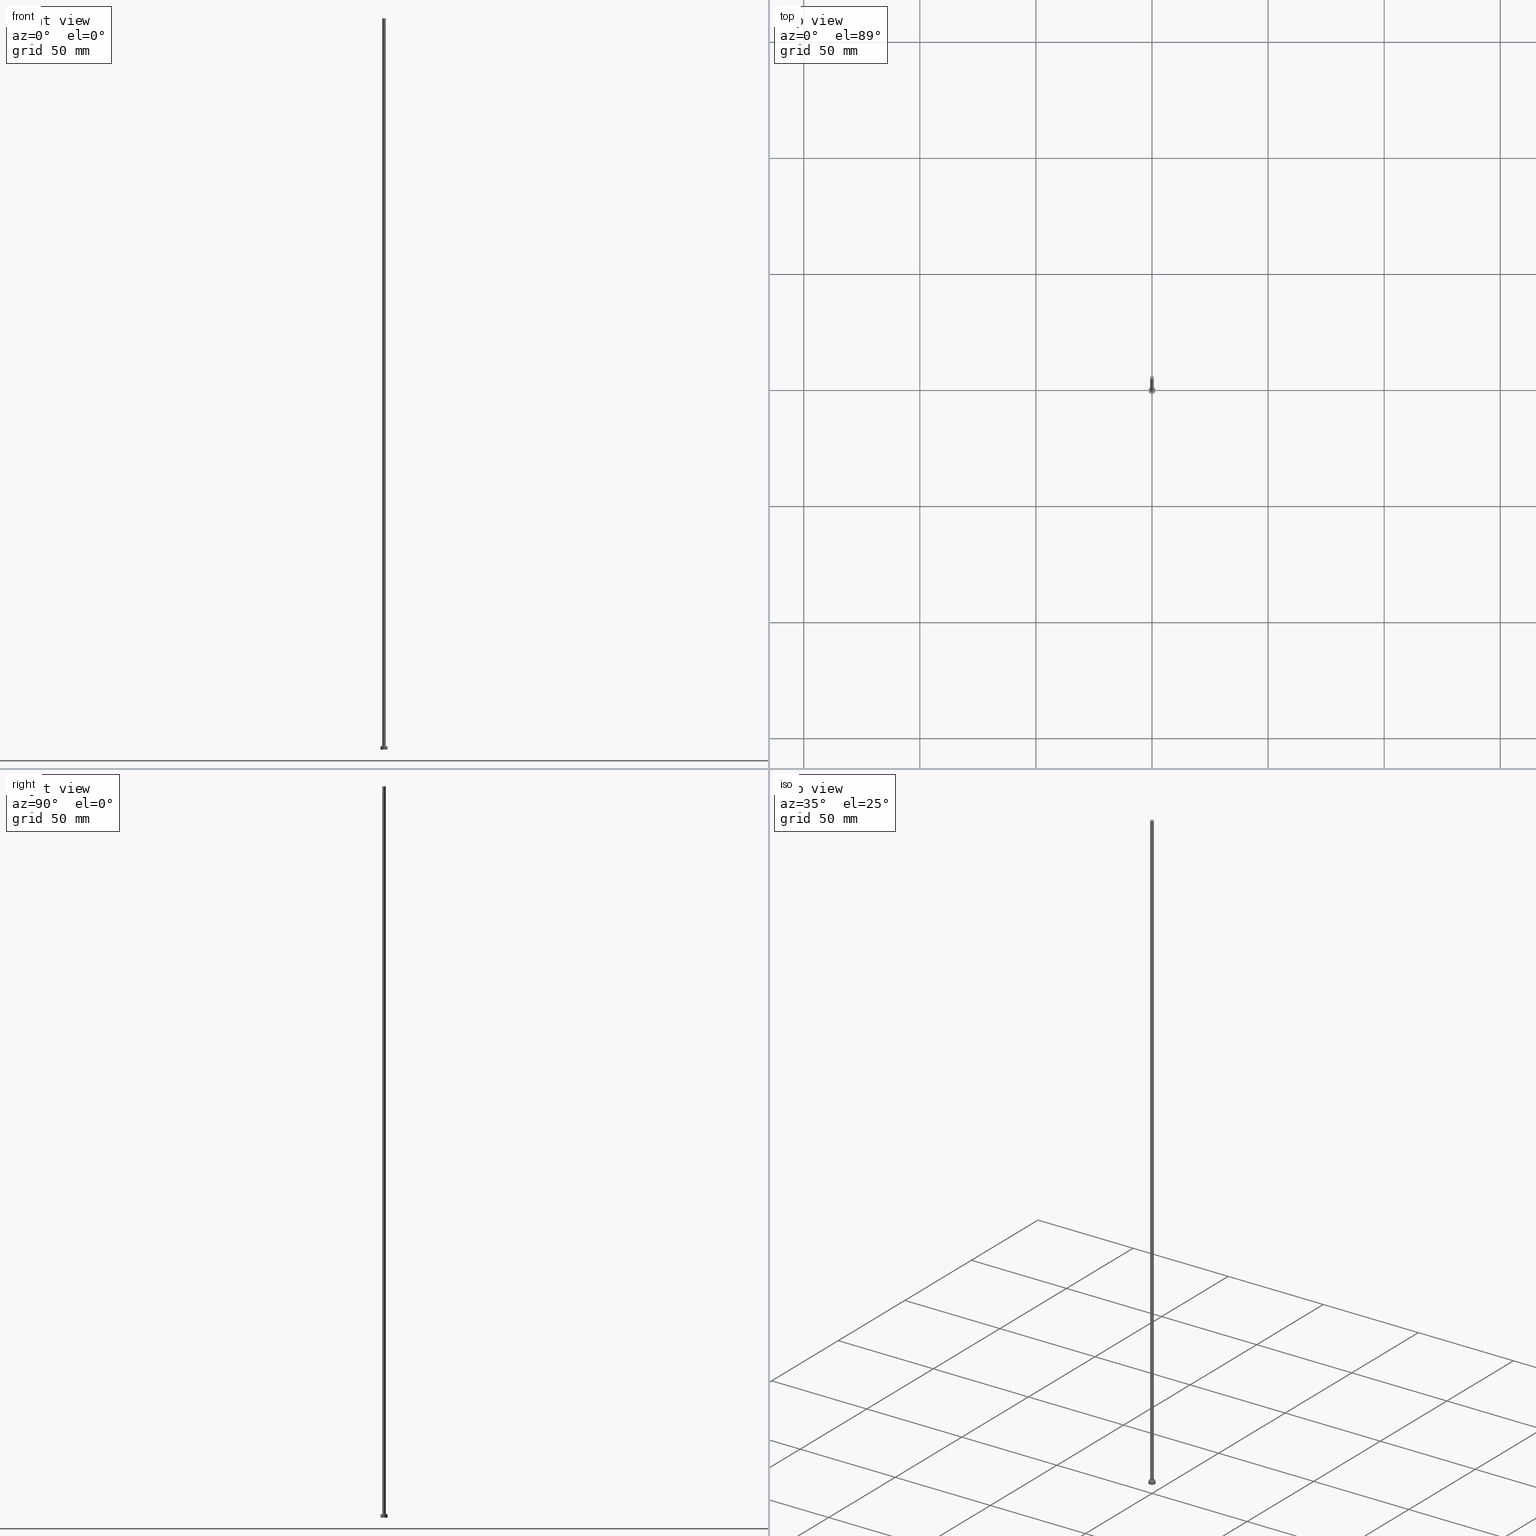
[diagram: canonical four-view strip — front | top / right | iso, engineering-drawing reading convention]
A machine part, canonical four-view strip (front | top / right | iso — engineering-drawing reading convention). The complete STEP part file that produces these views, byte-faithful:
ISO-10303-21;
HEADER;
FILE_DESCRIPTION (( 'STEP AP203' ),
    '1' );
FILE_NAME ('c9fe.STEP',
    '2026-02-06T12:32:58',
    ( '' ),
    ( '' ),
    'SwSTEP 2.0',
    'SolidWorks 2019',
    '' );
FILE_SCHEMA (( 'CONFIG_CONTROL_DESIGN' ));
ENDSEC;

DATA;
#1 = PERSON_AND_ORGANIZATION_ROLE ( 'design_owner' ) ;
#2 = DIRECTION ( 'NONE',  ( 1.000000000000000000, 0.000000000000000000, -0.000000000000000000 ) ) ;
#3 = APPROVAL_PERSON_ORGANIZATION ( #165, #72, #146 ) ;
#4 = CALENDAR_DATE ( 2026, 6, 2 ) ;
#5 =( LENGTH_UNIT ( ) NAMED_UNIT ( * ) SI_UNIT ( .MILLI., .METRE. ) );
#6 = CARTESIAN_POINT ( 'NONE',  ( 0.000000000000000000, 0.000000000000000000, 0.000000000000000000 ) ) ;
#7 = DIRECTION ( 'NONE',  ( -0.000000000000000000, -0.000000000000000000, -1.000000000000000000 ) ) ;
#8 = AXIS2_PLACEMENT_3D ( 'NONE', #239, #103, #201 ) ;
#9 = CARTESIAN_POINT ( 'NONE',  ( 0.000000000000000000, 0.000000000000000000, 315.0000000000000000 ) ) ;
#10 = EDGE_LOOP ( 'NONE', ( #64, #122 ) ) ;
#11 = PERSON_AND_ORGANIZATION ( #44, #90 ) ;
#12 = FACE_OUTER_BOUND ( 'NONE', #29, .T. ) ;
#13 = ORIENTED_EDGE ( 'NONE', *, *, #65, .F. ) ;
#14 = CC_DESIGN_SECURITY_CLASSIFICATION ( #229, ( #60 ) ) ;
#15 = EDGE_LOOP ( 'NONE', ( #128, #139, #191, #87 ) ) ;
#16 = VERTEX_POINT ( 'NONE', #171 ) ;
#17 = ADVANCED_FACE ( 'NONE', ( #248 ), #156, .T. ) ;
#18 = CARTESIAN_POINT ( 'NONE',  ( -1.500000000000000222, 0.000000000000000000, 1.500000000000000000 ) ) ;
#19 = DIRECTION ( 'NONE',  ( 1.000000000000000000, 0.000000000000000000, 0.000000000000000000 ) ) ;
#20 = EDGE_CURVE ( 'NONE', #48, #79, #176, .T. ) ;
#21 = AXIS2_PLACEMENT_3D ( 'NONE', #232, #228, #93 ) ;
#22 = ORIENTED_EDGE ( 'NONE', *, *, #209, .F. ) ;
#23 = DATE_TIME_ROLE ( 'creation_date' ) ;
#24 = FACE_OUTER_BOUND ( 'NONE', #10, .T. ) ;
#25 = CC_DESIGN_PERSON_AND_ORGANIZATION_ASSIGNMENT ( #206, #203, ( #229 ) ) ;
#26 = CARTESIAN_POINT ( 'NONE',  ( 1.500000000000000222, 1.836970198721030181E-16, 1.500000000000000000 ) ) ;
#27 = CIRCLE ( 'NONE', #35, 0.7500000000000001110 ) ;
#28 = PRODUCT ( 'c9fe', 'c9fe', '', ( #76 ) ) ;
#29 = EDGE_LOOP ( 'NONE', ( #195, #69, #222, #151 ) ) ;
#30 = ADVANCED_FACE ( 'NONE', ( #12 ), #120, .T. ) ;
#31 = DESIGN_CONTEXT ( 'detailed design', #178, 'design' ) ;
#32 = AXIS2_PLACEMENT_3D ( 'NONE', #216, #230, #47 ) ;
#33 = UNCERTAINTY_MEASURE_WITH_UNIT (LENGTH_MEASURE( 1.000000000000000082E-05 ), #5, 'distance_accuracy_value', 'NONE');
#34 = FACE_OUTER_BOUND ( 'NONE', #110, .T. ) ;
#35 = AXIS2_PLACEMENT_3D ( 'NONE', #211, #220, #19 ) ;
#36 = CARTESIAN_POINT ( 'NONE',  ( 0.000000000000000000, 0.000000000000000000, 1.500000000000000000 ) ) ;
#37 = VERTEX_POINT ( 'NONE', #113 ) ;
#38 = EDGE_CURVE ( 'NONE', #210, #16, #224, .T. ) ;
#39 = FACE_OUTER_BOUND ( 'NONE', #94, .T. ) ;
#40 = CALENDAR_DATE ( 2026, 6, 2 ) ;
#41 = DIRECTION ( 'NONE',  ( 1.000000000000000000, 0.000000000000000000, -0.000000000000000000 ) ) ;
#42 = CC_DESIGN_DATE_AND_TIME_ASSIGNMENT ( #104, #23, ( #215 ) ) ;
#43 = DIRECTION ( 'NONE',  ( 1.000000000000000000, 0.000000000000000000, -0.000000000000000000 ) ) ;
#44 = PERSON ( 'NEUR�EN�', 'NEUR�EN�', 'NEUR�EN�', ('NEUR�EN�'), ('NEUR�EN�'), ('NEUR�EN�') ) ;
#45 = ORIENTED_EDGE ( 'NONE', *, *, #227, .T. ) ;
#46 = APPROVAL_ROLE ( '' ) ;
#47 = DIRECTION ( 'NONE',  ( 1.000000000000000000, 0.000000000000000000, 0.000000000000000000 ) ) ;
#48 = VERTEX_POINT ( 'NONE', #138 ) ;
#49 = SHAPE_DEFINITION_REPRESENTATION ( #111, #160 ) ;
#50 = DIRECTION ( 'NONE',  ( -0.000000000000000000, -0.000000000000000000, -1.000000000000000000 ) ) ;
#51 = AXIS2_PLACEMENT_3D ( 'NONE', #149, #207, #245 ) ;
#52 = AXIS2_PLACEMENT_3D ( 'NONE', #189, #107, #170 ) ;
#53 = CARTESIAN_POINT ( 'NONE',  ( 0.000000000000000000, 0.000000000000000000, 0.000000000000000000 ) ) ;
#54 = CARTESIAN_POINT ( 'NONE',  ( -0.7500000000000001110, 0.000000000000000000, 315.0000000000000000 ) ) ;
#55 = EDGE_CURVE ( 'NONE', #37, #79, #27, .T. ) ;
#56 =( GEOMETRIC_REPRESENTATION_CONTEXT ( 3 ) GLOBAL_UNCERTAINTY_ASSIGNED_CONTEXT ( ( #33 ) ) GLOBAL_UNIT_ASSIGNED_CONTEXT ( ( #5, #82, #100 ) ) REPRESENTATION_CONTEXT ( 'NONE', 'WORKASPACE' ) );
#57 = PERSON_AND_ORGANIZATION_ROLE ( 'design_supplier' ) ;
#58 = PERSON_AND_ORGANIZATION ( #44, #90 ) ;
#59 = DIRECTION ( 'NONE',  ( -1.000000000000000000, 0.000000000000000000, 0.000000000000000000 ) ) ;
#60 = PRODUCT_DEFINITION_FORMATION_WITH_SPECIFIED_SOURCE ( 'LIBOVOLN�', '', #28, .NOT_KNOWN. ) ;
#61 = DATE_AND_TIME ( #4, #158 ) ;
#62 = DIRECTION ( 'NONE',  ( -0.000000000000000000, -0.000000000000000000, -1.000000000000000000 ) ) ;
#63 = PLANE ( 'NONE',  #97 ) ;
#64 = ORIENTED_EDGE ( 'NONE', *, *, #251, .F. ) ;
#65 = EDGE_CURVE ( 'NONE', #48, #137, #169, .T. ) ;
#66 = AXIS2_PLACEMENT_3D ( 'NONE', #141, #89, #154 ) ;
#67 = APPROVAL_DATE_TIME ( #133, #72 ) ;
#68 = CARTESIAN_POINT ( 'NONE',  ( 0.7500000000000001110, 9.184850993605150903E-17, 315.0000000000000000 ) ) ;
#69 = ORIENTED_EDGE ( 'NONE', *, *, #109, .T. ) ;
#70 = CALENDAR_DATE ( 2026, 6, 2 ) ;
#71 = ORIENTED_EDGE ( 'NONE', *, *, #88, .F. ) ;
#72 = APPROVAL ( #240, 'NEUR�EN�' ) ;
#73 = PERSON_AND_ORGANIZATION ( #44, #90 ) ;
#74 = LOCAL_TIME ( 13, 32, 58.00000000000000000, #204 ) ;
#75 = PLANE ( 'NONE',  #184 ) ;
#76 = MECHANICAL_CONTEXT ( 'NONE', #121, 'mechanical' ) ;
#77 = DIRECTION ( 'NONE',  ( 0.000000000000000000, 0.000000000000000000, 1.000000000000000000 ) ) ;
#78 = AXIS2_PLACEMENT_3D ( 'NONE', #6, #130, #126 ) ;
#79 = VERTEX_POINT ( 'NONE', #183 ) ;
#80 = CALENDAR_DATE ( 2026, 6, 2 ) ;
#81 = APPROVAL_DATE_TIME ( #61, #124 ) ;
#82 =( NAMED_UNIT ( * ) PLANE_ANGLE_UNIT ( ) SI_UNIT ( $, .RADIAN. ) );
#83 = APPROVAL_STATUS ( 'not_yet_approved' ) ;
#84 = PLANE ( 'NONE',  #179 ) ;
#85 = VECTOR ( 'NONE', #200, 1000.000000000000000 ) ;
#86 = DIRECTION ( 'NONE',  ( -1.000000000000000000, 0.000000000000000000, 0.000000000000000000 ) ) ;
#87 = ORIENTED_EDGE ( 'NONE', *, *, #251, .T. ) ;
#88 = EDGE_CURVE ( 'NONE', #79, #37, #101, .T. ) ;
#89 = DIRECTION ( 'NONE',  ( -0.000000000000000000, -0.000000000000000000, -1.000000000000000000 ) ) ;
#90 = ORGANIZATION ( 'NEUR�EN�', 'NEUR�EN�', '' ) ;
#91 = VERTEX_POINT ( 'NONE', #235 ) ;
#92 = CC_DESIGN_PERSON_AND_ORGANIZATION_ASSIGNMENT ( #58, #187, ( #215 ) ) ;
#93 = DIRECTION ( 'NONE',  ( -1.000000000000000000, 0.000000000000000000, 0.000000000000000000 ) ) ;
#94 = EDGE_LOOP ( 'NONE', ( #13, #246, #196, #132 ) ) ;
#95 = CC_DESIGN_APPROVAL ( #124, ( #215 ) ) ;
#96 = CC_DESIGN_PERSON_AND_ORGANIZATION_ASSIGNMENT ( #181, #1, ( #28 ) ) ;
#97 = AXIS2_PLACEMENT_3D ( 'NONE', #9, #106, #43 ) ;
#98 = DIRECTION ( 'NONE',  ( -0.000000000000000000, -0.000000000000000000, -1.000000000000000000 ) ) ;
#99 = LINE ( 'NONE', #218, #85 ) ;
#100 =( NAMED_UNIT ( * ) SI_UNIT ( $, .STERADIAN. ) SOLID_ANGLE_UNIT ( ) );
#101 = CIRCLE ( 'NONE', #213, 0.7500000000000001110 ) ;
#102 = APPLICATION_PROTOCOL_DEFINITION ( 'international standard', 'config_control_design', 1994, #121 ) ;
#103 = DIRECTION ( 'NONE',  ( 0.000000000000000000, 0.000000000000000000, 1.000000000000000000 ) ) ;
#104 = DATE_AND_TIME ( #80, #74 ) ;
#105 = APPLICATION_PROTOCOL_DEFINITION ( 'international standard', 'config_control_design', 1994, #178 ) ;
#106 = DIRECTION ( 'NONE',  ( 0.000000000000000000, 0.000000000000000000, 1.000000000000000000 ) ) ;
#107 = DIRECTION ( 'NONE',  ( 0.000000000000000000, 0.000000000000000000, 1.000000000000000000 ) ) ;
#108 = CC_DESIGN_APPROVAL ( #119, ( #229 ) ) ;
#109 = EDGE_CURVE ( 'NONE', #210, #91, #99, .T. ) ;
#110 = EDGE_LOOP ( 'NONE', ( #45, #185 ) ) ;
#111 = PRODUCT_DEFINITION_SHAPE ( 'NONE', 'NONE',  #215 ) ;
#112 = CC_DESIGN_DATE_AND_TIME_ASSIGNMENT ( #214, #157, ( #229 ) ) ;
#113 = CARTESIAN_POINT ( 'NONE',  ( -0.7500000000000001110, 0.000000000000000000, 1.500000000000000000 ) ) ;
#114 = COORDINATED_UNIVERSAL_TIME_OFFSET ( 1, 0, .AHEAD. ) ;
#115 = PERSON_AND_ORGANIZATION_ROLE ( 'creator' ) ;
#116 = ORIENTED_EDGE ( 'NONE', *, *, #55, .T. ) ;
#117 = CALENDAR_DATE ( 2026, 6, 2 ) ;
#118 = LOCAL_TIME ( 13, 32, 58.00000000000000000, #177 ) ;
#119 = APPROVAL ( #250, 'NEUR�EN�' ) ;
#120 = CYLINDRICAL_SURFACE ( 'NONE', #66, 1.500000000000000222 ) ;
#121 = APPLICATION_CONTEXT ( 'configuration controlled 3d designs of mechanical parts and assemblies' ) ;
#122 = ORIENTED_EDGE ( 'NONE', *, *, #142, .F. ) ;
#123 = ADVANCED_FACE ( 'NONE', ( #255, #34 ), #75, .T. ) ;
#124 = APPROVAL ( #83, 'NEUR�EN�' ) ;
#125 = DIRECTION ( 'NONE',  ( 1.000000000000000000, 0.000000000000000000, 0.000000000000000000 ) ) ;
#126 = DIRECTION ( 'NONE',  ( 1.000000000000000000, 0.000000000000000000, 0.000000000000000000 ) ) ;
#127 = DIRECTION ( 'NONE',  ( 1.000000000000000000, 0.000000000000000000, 0.000000000000000000 ) ) ;
#128 = ORIENTED_EDGE ( 'NONE', *, *, #109, .F. ) ;
#129 = DIRECTION ( 'NONE',  ( -0.000000000000000000, -0.000000000000000000, -1.000000000000000000 ) ) ;
#130 = DIRECTION ( 'NONE',  ( 0.000000000000000000, 0.000000000000000000, 1.000000000000000000 ) ) ;
#131 = CIRCLE ( 'NONE', #194, 1.500000000000000222 ) ;
#132 = ORIENTED_EDGE ( 'NONE', *, *, #192, .F. ) ;
#133 = DATE_AND_TIME ( #40, #152 ) ;
#134 = FACE_OUTER_BOUND ( 'NONE', #190, .T. ) ;
#135 = DIRECTION ( 'NONE',  ( 0.000000000000000000, 0.000000000000000000, 1.000000000000000000 ) ) ;
#136 = LOCAL_TIME ( 13, 32, 58.00000000000000000, #114 ) ;
#137 = VERTEX_POINT ( 'NONE', #54 ) ;
#138 = CARTESIAN_POINT ( 'NONE',  ( 0.7500000000000001110, 9.184850993605150903E-17, 315.0000000000000000 ) ) ;
#139 = ORIENTED_EDGE ( 'NONE', *, *, #227, .F. ) ;
#140 = CIRCLE ( 'NONE', #8, 1.500000000000000222 ) ;
#141 = CARTESIAN_POINT ( 'NONE',  ( 0.000000000000000000, 0.000000000000000000, 1.500000000000000000 ) ) ;
#142 = EDGE_CURVE ( 'NONE', #91, #174, #131, .T. ) ;
#143 = DIRECTION ( 'NONE',  ( 0.000000000000000000, 0.000000000000000000, 1.000000000000000000 ) ) ;
#144 = DIRECTION ( 'NONE',  ( 0.000000000000000000, 0.000000000000000000, 1.000000000000000000 ) ) ;
#145 = EDGE_CURVE ( 'NONE', #16, #174, #199, .T. ) ;
#146 = APPROVAL_ROLE ( '' ) ;
#147 = PERSON_AND_ORGANIZATION ( #44, #90 ) ;
#148 = AXIS2_PLACEMENT_3D ( 'NONE', #162, #144, #238 ) ;
#149 = CARTESIAN_POINT ( 'NONE',  ( 0.000000000000000000, 0.000000000000000000, 315.0000000000000000 ) ) ;
#150 = CARTESIAN_POINT ( 'NONE',  ( 0.000000000000000000, 0.000000000000000000, 1.500000000000000000 ) ) ;
#151 = ORIENTED_EDGE ( 'NONE', *, *, #145, .F. ) ;
#152 = LOCAL_TIME ( 13, 32, 58.00000000000000000, #223 ) ;
#153 = APPROVAL_DATE_TIME ( #175, #119 ) ;
#154 = DIRECTION ( 'NONE',  ( -1.000000000000000000, 0.000000000000000000, 0.000000000000000000 ) ) ;
#155 = ORIENTED_EDGE ( 'NONE', *, *, #209, .T. ) ;
#156 = CYLINDRICAL_SURFACE ( 'NONE', #21, 0.7500000000000001110 ) ;
#157 = DATE_TIME_ROLE ( 'classification_date' ) ;
#158 = LOCAL_TIME ( 13, 32, 58.00000000000000000, #242 ) ;
#159 = ADVANCED_FACE ( 'NONE', ( #134 ), #63, .T. ) ;
#160 = ADVANCED_BREP_SHAPE_REPRESENTATION ( 'c9fe', ( #252, #78 ), #56 ) ;
#161 = AXIS2_PLACEMENT_3D ( 'NONE', #202, #129, #59 ) ;
#162 = CARTESIAN_POINT ( 'NONE',  ( 0.000000000000000000, 0.000000000000000000, 315.0000000000000000 ) ) ;
#163 = ADVANCED_FACE ( 'NONE', ( #225 ), #168, .T. ) ;
#164 = PERSON_AND_ORGANIZATION ( #44, #90 ) ;
#165 = PERSON_AND_ORGANIZATION ( #44, #90 ) ;
#166 = APPROVAL_ROLE ( '' ) ;
#167 = CC_DESIGN_PERSON_AND_ORGANIZATION_ASSIGNMENT ( #164, #57, ( #60 ) ) ;
#168 = CYLINDRICAL_SURFACE ( 'NONE', #243, 1.500000000000000222 ) ;
#169 = CIRCLE ( 'NONE', #148, 0.7500000000000001110 ) ;
#170 = DIRECTION ( 'NONE',  ( 1.000000000000000000, 0.000000000000000000, 0.000000000000000000 ) ) ;
#171 = CARTESIAN_POINT ( 'NONE',  ( -1.500000000000000222, 0.000000000000000000, 1.500000000000000000 ) ) ;
#172 = ORIENTED_EDGE ( 'NONE', *, *, #55, .F. ) ;
#173 = CIRCLE ( 'NONE', #52, 1.500000000000000222 ) ;
#174 = VERTEX_POINT ( 'NONE', #205 ) ;
#175 = DATE_AND_TIME ( #70, #136 ) ;
#176 = LINE ( 'NONE', #68, #217 ) ;
#177 = COORDINATED_UNIVERSAL_TIME_OFFSET ( 1, 0, .AHEAD. ) ;
#178 = APPLICATION_CONTEXT ( 'configuration controlled 3d designs of mechanical parts and assemblies' ) ;
#179 = AXIS2_PLACEMENT_3D ( 'NONE', #188, #135, #41 ) ;
#180 = DIRECTION ( 'NONE',  ( 0.000000000000000000, 0.000000000000000000, 1.000000000000000000 ) ) ;
#181 = PERSON_AND_ORGANIZATION ( #44, #90 ) ;
#182 = ADVANCED_FACE ( 'NONE', ( #24 ), #84, .F. ) ;
#183 = CARTESIAN_POINT ( 'NONE',  ( 0.7500000000000001110, 9.184850993605150903E-17, 1.500000000000000000 ) ) ;
#184 = AXIS2_PLACEMENT_3D ( 'NONE', #236, #77, #2 ) ;
#185 = ORIENTED_EDGE ( 'NONE', *, *, #38, .T. ) ;
#186 = ORIENTED_EDGE ( 'NONE', *, *, #192, .T. ) ;
#187 = PERSON_AND_ORGANIZATION_ROLE ( 'creator' ) ;
#188 = CARTESIAN_POINT ( 'NONE',  ( 0.000000000000000000, 0.000000000000000000, 0.000000000000000000 ) ) ;
#189 = CARTESIAN_POINT ( 'NONE',  ( 0.000000000000000000, 0.000000000000000000, 1.500000000000000000 ) ) ;
#190 = EDGE_LOOP ( 'NONE', ( #155, #249 ) ) ;
#191 = ORIENTED_EDGE ( 'NONE', *, *, #145, .T. ) ;
#192 = EDGE_CURVE ( 'NONE', #137, #37, #244, .T. ) ;
#193 = EDGE_LOOP ( 'NONE', ( #231, #22, #186, #116 ) ) ;
#194 = AXIS2_PLACEMENT_3D ( 'NONE', #53, #143, #125 ) ;
#195 = ORIENTED_EDGE ( 'NONE', *, *, #38, .F. ) ;
#196 = ORIENTED_EDGE ( 'NONE', *, *, #88, .T. ) ;
#197 = VECTOR ( 'NONE', #98, 1000.000000000000000 ) ;
#198 = PRODUCT_RELATED_PRODUCT_CATEGORY ( 'detail', '', ( #28 ) ) ;
#199 = LINE ( 'NONE', #18, #197 ) ;
#200 = DIRECTION ( 'NONE',  ( -0.000000000000000000, -0.000000000000000000, -1.000000000000000000 ) ) ;
#201 = DIRECTION ( 'NONE',  ( 1.000000000000000000, 0.000000000000000000, 0.000000000000000000 ) ) ;
#202 = CARTESIAN_POINT ( 'NONE',  ( 0.000000000000000000, 0.000000000000000000, 315.0000000000000000 ) ) ;
#203 = PERSON_AND_ORGANIZATION_ROLE ( 'classification_officer' ) ;
#204 = COORDINATED_UNIVERSAL_TIME_OFFSET ( 1, 0, .AHEAD. ) ;
#205 = CARTESIAN_POINT ( 'NONE',  ( -1.500000000000000222, 0.000000000000000000, 0.000000000000000000 ) ) ;
#206 = PERSON_AND_ORGANIZATION ( #44, #90 ) ;
#207 = DIRECTION ( 'NONE',  ( 0.000000000000000000, 0.000000000000000000, 1.000000000000000000 ) ) ;
#208 = APPROVAL_PERSON_ORGANIZATION ( #147, #124, #166 ) ;
#209 = EDGE_CURVE ( 'NONE', #137, #48, #247, .T. ) ;
#210 = VERTEX_POINT ( 'NONE', #26 ) ;
#211 = CARTESIAN_POINT ( 'NONE',  ( 0.000000000000000000, 0.000000000000000000, 1.500000000000000000 ) ) ;
#212 = EDGE_LOOP ( 'NONE', ( #172, #71 ) ) ;
#213 = AXIS2_PLACEMENT_3D ( 'NONE', #36, #180, #127 ) ;
#214 = DATE_AND_TIME ( #117, #118 ) ;
#215 = PRODUCT_DEFINITION ( 'NEZN�M�', '', #60, #31 ) ;
#216 = CARTESIAN_POINT ( 'NONE',  ( 0.000000000000000000, 0.000000000000000000, 1.500000000000000000 ) ) ;
#217 = VECTOR ( 'NONE', #50, 1000.000000000000000 ) ;
#218 = CARTESIAN_POINT ( 'NONE',  ( 1.500000000000000222, 1.836970198721030181E-16, 1.500000000000000000 ) ) ;
#219 = APPROVAL_PERSON_ORGANIZATION ( #73, #119, #46 ) ;
#220 = DIRECTION ( 'NONE',  ( 0.000000000000000000, 0.000000000000000000, 1.000000000000000000 ) ) ;
#221 = SECURITY_CLASSIFICATION_LEVEL ( 'unclassified' ) ;
#222 = ORIENTED_EDGE ( 'NONE', *, *, #142, .T. ) ;
#223 = COORDINATED_UNIVERSAL_TIME_OFFSET ( 1, 0, .AHEAD. ) ;
#224 = CIRCLE ( 'NONE', #32, 1.500000000000000222 ) ;
#225 = FACE_OUTER_BOUND ( 'NONE', #15, .T. ) ;
#226 = CARTESIAN_POINT ( 'NONE',  ( -0.7500000000000001110, 0.000000000000000000, 315.0000000000000000 ) ) ;
#227 = EDGE_CURVE ( 'NONE', #16, #210, #173, .T. ) ;
#228 = DIRECTION ( 'NONE',  ( -0.000000000000000000, -0.000000000000000000, -1.000000000000000000 ) ) ;
#229 = SECURITY_CLASSIFICATION ( '', '', #221 ) ;
#230 = DIRECTION ( 'NONE',  ( 0.000000000000000000, 0.000000000000000000, 1.000000000000000000 ) ) ;
#231 = ORIENTED_EDGE ( 'NONE', *, *, #20, .F. ) ;
#232 = CARTESIAN_POINT ( 'NONE',  ( 0.000000000000000000, 0.000000000000000000, 315.0000000000000000 ) ) ;
#233 = VECTOR ( 'NONE', #62, 1000.000000000000000 ) ;
#234 = ADVANCED_FACE ( 'NONE', ( #39 ), #241, .T. ) ;
#235 = CARTESIAN_POINT ( 'NONE',  ( 1.500000000000000222, 1.836970198721030181E-16, 0.000000000000000000 ) ) ;
#236 = CARTESIAN_POINT ( 'NONE',  ( 0.000000000000000000, 0.000000000000000000, 1.500000000000000000 ) ) ;
#237 = CC_DESIGN_APPROVAL ( #72, ( #60 ) ) ;
#238 = DIRECTION ( 'NONE',  ( 1.000000000000000000, 0.000000000000000000, 0.000000000000000000 ) ) ;
#239 = CARTESIAN_POINT ( 'NONE',  ( 0.000000000000000000, 0.000000000000000000, 0.000000000000000000 ) ) ;
#240 = APPROVAL_STATUS ( 'not_yet_approved' ) ;
#241 = CYLINDRICAL_SURFACE ( 'NONE', #161, 0.7500000000000001110 ) ;
#242 = COORDINATED_UNIVERSAL_TIME_OFFSET ( 1, 0, .AHEAD. ) ;
#243 = AXIS2_PLACEMENT_3D ( 'NONE', #150, #7, #86 ) ;
#244 = LINE ( 'NONE', #226, #233 ) ;
#245 = DIRECTION ( 'NONE',  ( 1.000000000000000000, 0.000000000000000000, 0.000000000000000000 ) ) ;
#246 = ORIENTED_EDGE ( 'NONE', *, *, #20, .T. ) ;
#247 = CIRCLE ( 'NONE', #51, 0.7500000000000001110 ) ;
#248 = FACE_OUTER_BOUND ( 'NONE', #193, .T. ) ;
#249 = ORIENTED_EDGE ( 'NONE', *, *, #65, .T. ) ;
#250 = APPROVAL_STATUS ( 'not_yet_approved' ) ;
#251 = EDGE_CURVE ( 'NONE', #174, #91, #140, .T. ) ;
#252 = MANIFOLD_SOLID_BREP ( 'P�idat vysunut�m3', #253 ) ;
#253 = CLOSED_SHELL ( 'NONE', ( #234, #30, #163, #123, #182, #17, #159 ) ) ;
#254 = CC_DESIGN_PERSON_AND_ORGANIZATION_ASSIGNMENT ( #11, #115, ( #60 ) ) ;
#255 = FACE_BOUND ( 'NONE', #212, .T. ) ;
ENDSEC;
END-ISO-10303-21;
